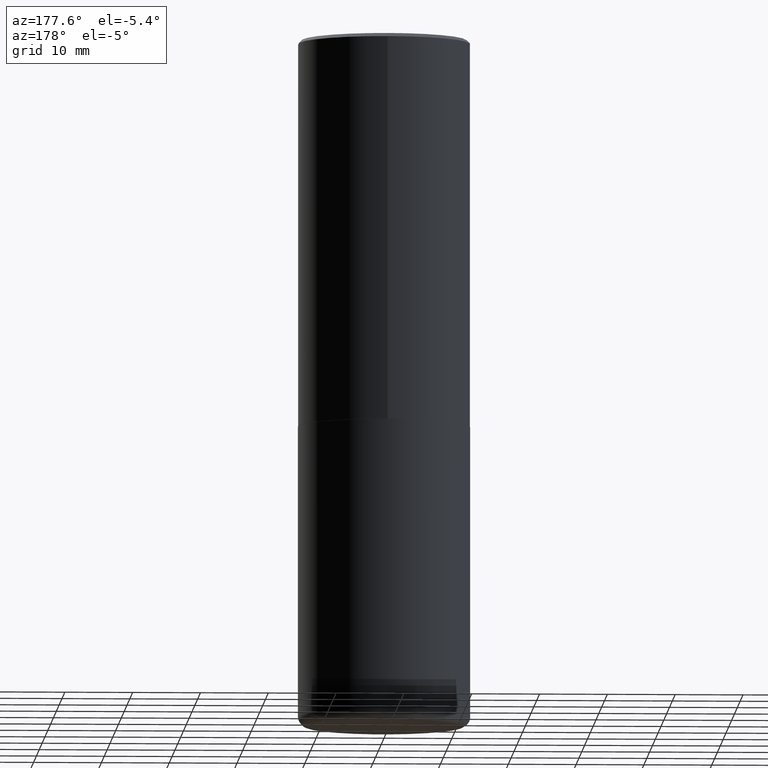
[diagram: clean part render]
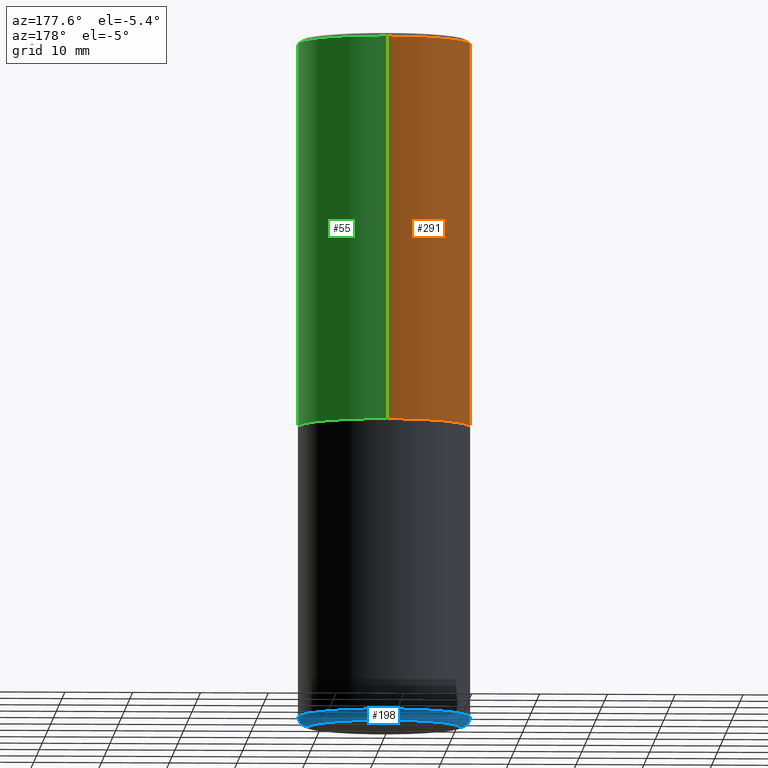
[diagram: same view with three faces highlighted in distinct colors, each labeled with its STEP entity id]
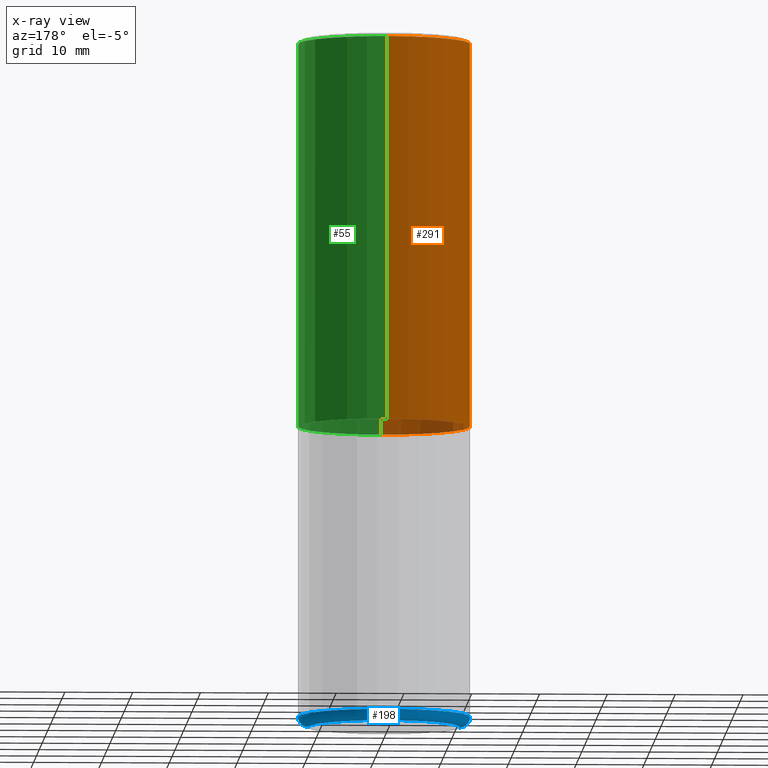
[diagram: x-ray of the same camera — body ghosted, the three highlighted faces saturated]
A machine part, auxiliary view with three faces highlighted in distinct colors.
The next image is the same camera in x-ray (body ghosted, the three faces saturated) — at least one of them is partly hidden behind the body in this view.
Their STEP definitions:

[orange] entity #291 — the highlighted cylindrical surface (partial cylindrical patch) has radius 12.7 mm, axis along (-0, 0, 1).
#12 = VECTOR ( 'NONE', #98, 39.37007874015748143 ) ;
#20 = ORIENTED_EDGE ( 'NONE', *, *, #288, .T. ) ;
#29 = CARTESIAN_POINT ( 'NONE',  ( 3.552713678800501718E-15, 0.5000000000000001110, -1.744981200526856521E-15 ) ) ;
#46 = LINE ( 'NONE', #227, #199 ) ;
#62 = ORIENTED_EDGE ( 'NONE', *, *, #246, .F. ) ;
#63 = EDGE_CURVE ( 'NONE', #120, #78, #403, .T. ) ;
#74 = EDGE_LOOP ( 'NONE', ( #235, #352, #20, #62 ) ) ;
#78 = VERTEX_POINT ( 'NONE', #319 ) ;
#87 = DIRECTION ( 'NONE',  ( -2.446529474774470711E-29, 3.489962401053712253E-15, 1.000000000000000000 ) ) ;
#95 = CARTESIAN_POINT ( 'NONE',  ( 4.893058949548968117E-31, -6.979924802107460893E-17, -0.02000000000000010797 ) ) ;
#98 = DIRECTION ( 'NONE',  ( -2.446529474774470711E-29, 3.489962401053712253E-15, 1.000000000000000000 ) ) ;
#120 = VERTEX_POINT ( 'NONE', #401 ) ;
#124 = DIRECTION ( 'NONE',  ( -6.982962677686266711E-15, -1.000000000000000000, 3.278217592397114284E-15 ) ) ;
#134 = CIRCLE ( 'NONE', #296, 0.5000000000000000000 ) ;
#146 = DIRECTION ( 'NONE',  ( -2.446529474774470711E-29, 3.489962401053712253E-15, 1.000000000000000000 ) ) ;
#150 = LINE ( 'NONE', #29, #12 ) ;
#157 = CARTESIAN_POINT ( 'NONE',  ( -3.430248998885764992E-15, -0.5000000000000001110, -0.01999999999999835937 ) ) ;
#176 = DIRECTION ( 'NONE',  ( -6.982962677686265922E-15, -1.000000000000000000, 3.489962401053712253E-15 ) ) ;
#182 = CARTESIAN_POINT ( 'NONE',  ( 3.491481338843133355E-15, 0.4999999999999999445, -0.02000000000000185310 ) ) ;
#192 = EDGE_CURVE ( 'NONE', #120, #200, #150, .T. ) ;
#197 = AXIS2_PLACEMENT_3D ( 'NONE', #339, #146, #176 ) ;
#199 = VECTOR ( 'NONE', #87, 39.37007874015748143 ) ;
#200 = VERTEX_POINT ( 'NONE', #182 ) ;
#217 = DIRECTION ( 'NONE',  ( -6.982962677686265922E-15, -1.000000000000000000, 3.491643216902136408E-15 ) ) ;
#227 = CARTESIAN_POINT ( 'NONE',  ( -3.491481338843133750E-15, -0.5000000000000001110, 1.744981200526856521E-15 ) ) ;
#228 = FACE_OUTER_BOUND ( 'NONE', #74, .T. ) ;
#235 = ORIENTED_EDGE ( 'NONE', *, *, #192, .F. ) ;
#241 = VERTEX_POINT ( 'NONE', #157 ) ;
#246 = EDGE_CURVE ( 'NONE', #200, #241, #134, .T. ) ;
#279 = DIRECTION ( 'NONE',  ( -2.446529474774470711E-29, 3.489962401053712253E-15, 1.000000000000000000 ) ) ;
#286 = AXIS2_PLACEMENT_3D ( 'NONE', #344, #317, #124 ) ;
#288 = EDGE_CURVE ( 'NONE', #78, #241, #46, .T. ) ;
#291 = ADVANCED_FACE ( 'NONE', ( #228 ), #365, .T. ) ;
#296 = AXIS2_PLACEMENT_3D ( 'NONE', #95, #279, #217 ) ;
#317 = DIRECTION ( 'NONE',  ( -2.446529474774470711E-29, 3.489962401053712253E-15, 1.000000000000000000 ) ) ;
#319 = CARTESIAN_POINT ( 'NONE',  ( -3.491481338843080107E-15, -0.5000000000000081046, -2.248999999999998334 ) ) ;
#339 = CARTESIAN_POINT ( 'NONE',  ( 0.000000000000000000, 0.000000000000000000, 0.000000000000000000 ) ) ;
#344 = CARTESIAN_POINT ( 'NONE',  ( 5.502244788767783920E-29, -7.848925439969798022E-15, -2.249000000000000110 ) ) ;
#352 = ORIENTED_EDGE ( 'NONE', *, *, #63, .T. ) ;
#365 = CYLINDRICAL_SURFACE ( 'NONE', #197, 0.5000000000000001110 ) ;
#401 = CARTESIAN_POINT ( 'NONE',  ( 3.552713678800530117E-15, 0.4999999999999925060, -2.249000000000001442 ) ) ;
#403 = CIRCLE ( 'NONE', #286, 0.5000000000000002220 ) ;

[blue] entity #198 — the highlighted toroidal blend (fillet) surface has major radius 11.176 mm and minor (blend) radius 1.524 mm.
#17 = CARTESIAN_POINT ( 'NONE',  ( -0.5000000000000000000, -1.020372279624149466E-14, -3.939999999999999947 ) ) ;
#39 = AXIS2_PLACEMENT_3D ( 'NONE', #203, #407, #397 ) ;
#40 = EDGE_CURVE ( 'NONE', #174, #289, #52, .T. ) ;
#52 = CIRCLE ( 'NONE', #107, 0.05999999999999997696 ) ;
#86 = DIRECTION ( 'NONE',  ( -6.982962677686266711E-15, -1.000000000000000000, 3.491481338843145583E-15 ) ) ;
#90 = AXIS2_PLACEMENT_3D ( 'NONE', #347, #377, #409 ) ;
#107 = AXIS2_PLACEMENT_3D ( 'NONE', #133, #251, #121 ) ;
#108 = CIRCLE ( 'NONE', #39, 0.4400000000000000022 ) ;
#121 = DIRECTION ( 'NONE',  ( -1.000000000000000000, 7.105427357600993970E-15, 0.000000000000000000 ) ) ;
#133 = CARTESIAN_POINT ( 'NONE',  ( -0.4400000000000000022, -1.063004843769755357E-14, -3.939999999999999947 ) ) ;
#153 = FACE_OUTER_BOUND ( 'NONE', #360, .T. ) ;
#163 = AXIS2_PLACEMENT_3D ( 'NONE', #205, #364, #335 ) ;
#174 = VERTEX_POINT ( 'NONE', #297 ) ;
#198 = ADVANCED_FACE ( 'NONE', ( #153 ), #328, .T. ) ;
#203 = CARTESIAN_POINT ( 'NONE',  ( 9.781875224740546387E-29, -1.396592535537258233E-14, -4.000000000000000000 ) ) ;
#205 = CARTESIAN_POINT ( 'NONE',  ( 9.635147096369438236E-29, -1.375643647504199401E-14, -3.939999999999999947 ) ) ;
#213 = CARTESIAN_POINT ( 'NONE',  ( 0.4400000000000000022, -1.703842893355454063E-14, -4.000000000000000000 ) ) ;
#251 = DIRECTION ( 'NONE',  ( 7.105427357601001859E-15, 1.000000000000000000, -3.491481338843145583E-15 ) ) ;
#262 = CARTESIAN_POINT ( 'NONE',  ( 0.4400000000000000022, -1.682894005322395074E-14, -3.939999999999999947 ) ) ;
#267 = ORIENTED_EDGE ( 'NONE', *, *, #367, .F. ) ;
#289 = VERTEX_POINT ( 'NONE', #17 ) ;
#295 = CIRCLE ( 'NONE', #303, 0.05999999999999997696 ) ;
#297 = CARTESIAN_POINT ( 'NONE',  ( -0.4400000000000000022, -1.052163005713481828E-14, -4.000000000000000000 ) ) ;
#300 = ORIENTED_EDGE ( 'NONE', *, *, #361, .T. ) ;
#303 = AXIS2_PLACEMENT_3D ( 'NONE', #262, #86, #376 ) ;
#328 = TOROIDAL_SURFACE ( 'NONE', #90, 0.4400000000000000022, 0.05999999999999994227 ) ;
#335 = DIRECTION ( 'NONE',  ( 1.000000000000000000, -6.982962677686266711E-15, 0.000000000000000000 ) ) ;
#347 = CARTESIAN_POINT ( 'NONE',  ( 9.635147096369438236E-29, -1.375643647504199401E-14, -3.939999999999999947 ) ) ;
#358 = EDGE_CURVE ( 'NONE', #378, #289, #374, .T. ) ;
#360 = EDGE_LOOP ( 'NONE', ( #300, #381, #399, #267 ) ) ;
#361 = EDGE_CURVE ( 'NONE', #418, #174, #108, .T. ) ;
#364 = DIRECTION ( 'NONE',  ( -2.445468806185136597E-29, 3.491481338843145583E-15, 1.000000000000000000 ) ) ;
#367 = EDGE_CURVE ( 'NONE', #418, #378, #295, .T. ) ;
#374 = CIRCLE ( 'NONE', #163, 0.5000000000000000000 ) ;
#376 = DIRECTION ( 'NONE',  ( 1.000000000000000000, -6.982962677686270655E-15, 0.000000000000000000 ) ) ;
#377 = DIRECTION ( 'NONE',  ( -2.445468806185136597E-29, 3.491481338843145583E-15, 1.000000000000000000 ) ) ;
#378 = VERTEX_POINT ( 'NONE', #400 ) ;
#381 = ORIENTED_EDGE ( 'NONE', *, *, #40, .T. ) ;
#397 = DIRECTION ( 'NONE',  ( 1.000000000000000000, -6.982962677686266711E-15, 0.000000000000000000 ) ) ;
#399 = ORIENTED_EDGE ( 'NONE', *, *, #358, .F. ) ;
#400 = CARTESIAN_POINT ( 'NONE',  ( 0.5000000000000000000, -1.724791781388512737E-14, -3.939999999999999947 ) ) ;
#407 = DIRECTION ( 'NONE',  ( -2.445468806185136597E-29, 3.491481338843145583E-15, 1.000000000000000000 ) ) ;
#409 = DIRECTION ( 'NONE',  ( 1.000000000000000000, -6.982962677686266711E-15, 4.883557194083113462E-29 ) ) ;
#418 = VERTEX_POINT ( 'NONE', #213 ) ;

[green] entity #55 — the highlighted cylindrical surface (partial cylindrical patch) has radius 12.7 mm, axis along (-0, 0, 1).
#7 = ORIENTED_EDGE ( 'NONE', *, *, #138, .T. ) ;
#8 = CIRCLE ( 'NONE', #100, 0.5000000000000000000 ) ;
#12 = VECTOR ( 'NONE', #98, 39.37007874015748143 ) ;
#29 = CARTESIAN_POINT ( 'NONE',  ( 3.552713678800501718E-15, 0.5000000000000001110, -1.744981200526856521E-15 ) ) ;
#42 = AXIS2_PLACEMENT_3D ( 'NONE', #247, #69, #244 ) ;
#44 = DIRECTION ( 'NONE',  ( -6.982962677686266711E-15, -1.000000000000000000, 3.278217592397114284E-15 ) ) ;
#46 = LINE ( 'NONE', #227, #199 ) ;
#55 = ADVANCED_FACE ( 'NONE', ( #191 ), #386, .T. ) ;
#69 = DIRECTION ( 'NONE',  ( -2.446529474774470711E-29, 3.489962401053712253E-15, 1.000000000000000000 ) ) ;
#78 = VERTEX_POINT ( 'NONE', #319 ) ;
#87 = DIRECTION ( 'NONE',  ( -2.446529474774470711E-29, 3.489962401053712253E-15, 1.000000000000000000 ) ) ;
#98 = DIRECTION ( 'NONE',  ( -2.446529474774470711E-29, 3.489962401053712253E-15, 1.000000000000000000 ) ) ;
#100 = AXIS2_PLACEMENT_3D ( 'NONE', #299, #366, #232 ) ;
#111 = CARTESIAN_POINT ( 'NONE',  ( 5.502244788767783920E-29, -7.848925439969798022E-15, -2.249000000000000110 ) ) ;
#116 = EDGE_CURVE ( 'NONE', #241, #200, #8, .T. ) ;
#120 = VERTEX_POINT ( 'NONE', #401 ) ;
#136 = ORIENTED_EDGE ( 'NONE', *, *, #192, .T. ) ;
#138 = EDGE_CURVE ( 'NONE', #78, #120, #393, .T. ) ;
#150 = LINE ( 'NONE', #29, #12 ) ;
#157 = CARTESIAN_POINT ( 'NONE',  ( -3.430248998885764992E-15, -0.5000000000000001110, -0.01999999999999835937 ) ) ;
#182 = CARTESIAN_POINT ( 'NONE',  ( 3.491481338843133355E-15, 0.4999999999999999445, -0.02000000000000185310 ) ) ;
#191 = FACE_OUTER_BOUND ( 'NONE', #394, .T. ) ;
#192 = EDGE_CURVE ( 'NONE', #120, #200, #150, .T. ) ;
#199 = VECTOR ( 'NONE', #87, 39.37007874015748143 ) ;
#200 = VERTEX_POINT ( 'NONE', #182 ) ;
#206 = DIRECTION ( 'NONE',  ( -2.446529474774470711E-29, 3.489962401053712253E-15, 1.000000000000000000 ) ) ;
#208 = ORIENTED_EDGE ( 'NONE', *, *, #116, .F. ) ;
#210 = AXIS2_PLACEMENT_3D ( 'NONE', #111, #206, #44 ) ;
#227 = CARTESIAN_POINT ( 'NONE',  ( -3.491481338843133750E-15, -0.5000000000000001110, 1.744981200526856521E-15 ) ) ;
#232 = DIRECTION ( 'NONE',  ( -6.982962677686265922E-15, -1.000000000000000000, 3.491643216902136408E-15 ) ) ;
#241 = VERTEX_POINT ( 'NONE', #157 ) ;
#244 = DIRECTION ( 'NONE',  ( -6.982962677686265922E-15, -1.000000000000000000, 3.489962401053712253E-15 ) ) ;
#247 = CARTESIAN_POINT ( 'NONE',  ( 0.000000000000000000, 0.000000000000000000, 0.000000000000000000 ) ) ;
#288 = EDGE_CURVE ( 'NONE', #78, #241, #46, .T. ) ;
#299 = CARTESIAN_POINT ( 'NONE',  ( 4.893058949548968117E-31, -6.979924802107460893E-17, -0.02000000000000010797 ) ) ;
#319 = CARTESIAN_POINT ( 'NONE',  ( -3.491481338843080107E-15, -0.5000000000000081046, -2.248999999999998334 ) ) ;
#329 = ORIENTED_EDGE ( 'NONE', *, *, #288, .F. ) ;
#366 = DIRECTION ( 'NONE',  ( -2.446529474774470711E-29, 3.489962401053712253E-15, 1.000000000000000000 ) ) ;
#386 = CYLINDRICAL_SURFACE ( 'NONE', #42, 0.5000000000000001110 ) ;
#393 = CIRCLE ( 'NONE', #210, 0.5000000000000002220 ) ;
#394 = EDGE_LOOP ( 'NONE', ( #7, #136, #208, #329 ) ) ;
#401 = CARTESIAN_POINT ( 'NONE',  ( 3.552713678800530117E-15, 0.4999999999999925060, -2.249000000000001442 ) ) ;